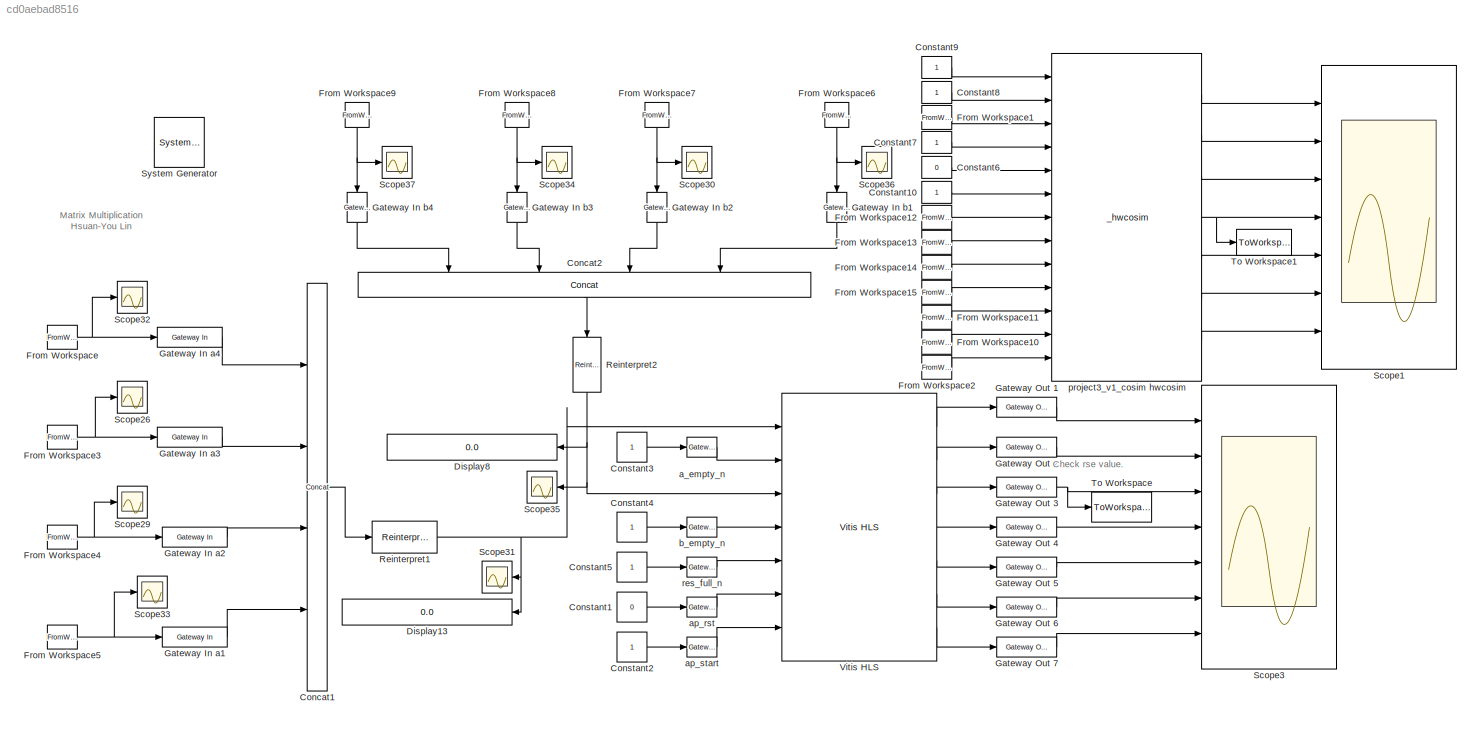
MODEL slx_cd0aebad8516
KIND model
CONFIG AbsTol = auto
CONFIG EnableMultiTasking = off
CONFIG FixedStep = auto
CONFIG MaxStep = auto
CONFIG MinStep = auto
CONFIG RelTol = 1e-3
CONFIG SampleTimeConstraint = Unconstrained
CONFIG SolverName = VariableStepAuto
CONFIG StartTime = 0.0
CONFIG StopTime = 30
BLOCK [Reference]  System Generator  REF=xbsIndex_r4/ System Generator
  AttributesFormatString = System\nGenerator
  Ports = []
  SourceBlock = xbsIndex_r4/ System Generator
  SourceType = Xilinx System Generator Block
  Tag = genX
  UserDataPersistent = on
BLOCK [Reference] Concat1  REF=hdlBasic/Concat
  Ports = [4, 1]
  SourceBlock = hdlBasic/Concat
  SourceType = Bus Concatenator Block
BLOCK [Reference] Concat2  REF=hdlBasic/Concat
  NameLocation = left
  Ports = [4, 1]
  SourceBlock = hdlBasic/Concat
  SourceType = Bus Concatenator Block
BLOCK [Constant] Constant1
  Value = 0
BLOCK [Constant] Constant10
BLOCK [Constant] Constant2
BLOCK [Constant] Constant3
BLOCK [Constant] Constant4
BLOCK [Constant] Constant5
BLOCK [Constant] Constant6
  Value = 0
BLOCK [Constant] Constant7
BLOCK [Constant] Constant8
BLOCK [Constant] Constant9
BLOCK [Display] Display13
  Decimation = 1
  Format = hex (Stored Integer)
  NameLocation = top
  Ports = [1]
BLOCK [Display] Display8
  Decimation = 1
  Format = hex (Stored Integer)
  NameLocation = top
  Ports = [1]
BLOCK [FromWorkspace] From Workspace
  VariableName = a4
BLOCK [FromWorkspace] From Workspace1
  VariableName = a4
BLOCK [FromWorkspace] From Workspace10
  VariableName = a2
BLOCK [FromWorkspace] From Workspace11
  VariableName = a1
BLOCK [FromWorkspace] From Workspace12
  VariableName = b1
BLOCK [FromWorkspace] From Workspace13
  VariableName = b2
BLOCK [FromWorkspace] From Workspace14
  VariableName = b3
BLOCK [FromWorkspace] From Workspace15
  VariableName = b4
BLOCK [FromWorkspace] From Workspace2
  VariableName = a3
BLOCK [FromWorkspace] From Workspace3
  VariableName = a3
BLOCK [FromWorkspace] From Workspace4
  VariableName = a2
BLOCK [FromWorkspace] From Workspace5
  VariableName = a1
BLOCK [FromWorkspace] From Workspace6
  NameLocation = left
  VariableName = b1
BLOCK [FromWorkspace] From Workspace7
  NameLocation = left
  VariableName = b2
BLOCK [FromWorkspace] From Workspace8
  NameLocation = left
  VariableName = b3
BLOCK [FromWorkspace] From Workspace9
  NameLocation = left
  VariableName = b4
BLOCK [Reference] Gateway In a1  REF=hdlBasic/Gateway In
  Ports = [1, 1]
  SourceBlock = hdlBasic/Gateway In
  SourceType = Gateway In Block
BLOCK [Reference] Gateway In a2  REF=hdlBasic/Gateway In
  Ports = [1, 1]
  SourceBlock = hdlBasic/Gateway In
  SourceType = Gateway In Block
BLOCK [Reference] Gateway In a3  REF=hdlBasic/Gateway In
  Ports = [1, 1]
  SourceBlock = hdlBasic/Gateway In
  SourceType = Gateway In Block
BLOCK [Reference] Gateway In a4  REF=hdlBasic/Gateway In
  Ports = [1, 1]
  SourceBlock = hdlBasic/Gateway In
  SourceType = Gateway In Block
BLOCK [Reference] Gateway In b1  REF=hdlBasic/Gateway In
  NameLocation = left
  Ports = [1, 1]
  SourceBlock = hdlBasic/Gateway In
  SourceType = Gateway In Block
BLOCK [Reference] Gateway In b2  REF=hdlBasic/Gateway In
  NameLocation = left
  Ports = [1, 1]
  SourceBlock = hdlBasic/Gateway In
  SourceType = Gateway In Block
BLOCK [Reference] Gateway In b3  REF=hdlBasic/Gateway In
  NameLocation = left
  Ports = [1, 1]
  SourceBlock = hdlBasic/Gateway In
  SourceType = Gateway In Block
BLOCK [Reference] Gateway In b4  REF=hdlBasic/Gateway In
  NameLocation = left
  Ports = [1, 1]
  SourceBlock = hdlBasic/Gateway In
  SourceType = Gateway In Block
BLOCK [Reference] Gateway Out 1  REF=hdlBasic/Gateway Out
  Ports = [1, 1]
  SourceBlock = hdlBasic/Gateway Out
  SourceType = Gateway Out Block
BLOCK [Reference] Gateway Out 2  REF=hdlBasic/Gateway Out
  Ports = [1, 1]
  SourceBlock = hdlBasic/Gateway Out
  SourceType = Gateway Out Block
BLOCK [Reference] Gateway Out 3  REF=hdlBasic/Gateway Out
  Ports = [1, 1]
  SourceBlock = hdlBasic/Gateway Out
  SourceType = Gateway Out Block
BLOCK [Reference] Gateway Out 4  REF=hdlBasic/Gateway Out
  Ports = [1, 1]
  SourceBlock = hdlBasic/Gateway Out
  SourceType = Gateway Out Block
BLOCK [Reference] Gateway Out 5  REF=hdlBasic/Gateway Out
  Ports = [1, 1]
  SourceBlock = hdlBasic/Gateway Out
  SourceType = Gateway Out Block
BLOCK [Reference] Gateway Out 6  REF=hdlBasic/Gateway Out
  Ports = [1, 1]
  SourceBlock = hdlBasic/Gateway Out
  SourceType = Gateway Out Block
BLOCK [Reference] Gateway Out 7  REF=hdlBasic/Gateway Out
  Ports = [1, 1]
  SourceBlock = hdlBasic/Gateway Out
  SourceType = Gateway Out Block
BLOCK [Reference] Reinterpret1  REF=hdlBasic/Reinterpret
  Ports = [1, 1]
  SourceBlock = hdlBasic/Reinterpret
  SourceType = Type Reinterpreter Block
BLOCK [Reference] Reinterpret2  REF=hdlBasic/Reinterpret
  NameLocation = left
  Ports = [1, 1]
  SourceBlock = hdlBasic/Reinterpret
  SourceType = Type Reinterpreter Block
BLOCK [Scope] Scope1
  Floating = off
  NumInputPorts = 7
  Ports = [7]
  ScopeSpecificationString = Simulink.scopes.TimeScopeBlockCfg('CurrentConfiguration', extmgr.ConfigurationSet(extmgr.Configuration('Core','General UI',true),extmgr.Configuration('Core','Source UI',true),extmgr.Configuration('Sources','WiredSimulink',true,'DataLoggingVariableName','ScopeData1','SampleTime','1'),extmgr.Configuration('Visuals','Time Domain',true,'SerializedDisplays',{struct('MinYLimReal','-1548189682728975.0000...<+1636ch>
BLOCK [Scope] Scope26
  Floating = off
  NumInputPorts = 1
  Ports = [1]
  ScopeSpecificationString = Simulink.scopes.TimeScopeBlockCfg('CurrentConfiguration', extmgr.ConfigurationSet(extmgr.Configuration('Core','General UI',true),extmgr.Configuration('Core','Source UI',true),extmgr.Configuration('Sources','WiredSimulink',true,'DataLoggingVariableName','ScopeData1','SampleTime','1'),extmgr.Configuration('Visuals','Time Domain',true,'SerializedDisplays',{struct('MinYLimReal','-2.875','MaxYLimReal',...<+1409ch>
BLOCK [Scope] Scope29
  Floating = off
  NumInputPorts = 1
  Ports = [1]
  ScopeSpecificationString = Simulink.scopes.TimeScopeBlockCfg('CurrentConfiguration', extmgr.ConfigurationSet(extmgr.Configuration('Core','General UI',true),extmgr.Configuration('Core','Source UI',true),extmgr.Configuration('Sources','WiredSimulink',true,'DataLoggingVariableName','ScopeData2','SampleTime','1'),extmgr.Configuration('Visuals','Time Domain',true,'SerializedDisplays',{struct('MinYLimReal','-1.125','MaxYLimReal',...<+1409ch>
BLOCK [Scope] Scope3
  Floating = off
  NumInputPorts = 7
  Ports = [7]
  ScopeSpecificationString = Simulink.scopes.TimeScopeBlockCfg('CurrentConfiguration', extmgr.ConfigurationSet(extmgr.Configuration('Core','General UI',true),extmgr.Configuration('Core','Source UI',true),extmgr.Configuration('Sources','WiredSimulink',true,'DataLoggingVariableName','ScopeData1','SampleTime','1'),extmgr.Configuration('Visuals','Time Domain',true,'SerializedDisplays',{struct('MinYLimReal','-1548189682728975.0000...<+1636ch>
BLOCK [Scope] Scope30
  Floating = off
  NumInputPorts = 1
  Ports = [1]
  ScopeSpecificationString = Simulink.scopes.TimeScopeBlockCfg('CurrentConfiguration', extmgr.ConfigurationSet(extmgr.Configuration('Core','General UI',true),extmgr.Configuration('Core','Source UI',true),extmgr.Configuration('Sources','WiredSimulink',true,'DataLoggingVariableName','ScopeData3','SampleTime','1'),extmgr.Configuration('Visuals','Time Domain',true,'SerializedDisplays',{struct('MinYLimReal','-2.875','MaxYLimReal',...<+1409ch>
BLOCK [Scope] Scope31
  Floating = off
  NameLocation = top
  NumInputPorts = 1
  Ports = [1]
  ScopeSpecificationString = Simulink.scopes.TimeScopeBlockCfg('CurrentConfiguration', extmgr.ConfigurationSet(extmgr.Configuration('Core','General UI',true),extmgr.Configuration('Core','Source UI',true),extmgr.Configuration('Sources','WiredSimulink',true,'DataLoggingVariableName','ScopeData4','SampleTime','1'),extmgr.Configuration('Visuals','Time Domain',true,'SerializedDisplays',{struct('MinYLimReal','-1.625','MaxYLimReal',...<+1409ch>
BLOCK [Scope] Scope32
  Floating = off
  NumInputPorts = 1
  Ports = [1]
  ScopeSpecificationString = Simulink.scopes.TimeScopeBlockCfg('CurrentConfiguration', extmgr.ConfigurationSet(extmgr.Configuration('Core','General UI',true),extmgr.Configuration('Core','Source UI',true),extmgr.Configuration('Sources','WiredSimulink',true,'DataLoggingVariableName','ScopeData5','SampleTime','1'),extmgr.Configuration('Visuals','Time Domain',true,'SerializedDisplays',{struct('MinYLimReal','-1.625','MaxYLimReal',...<+1409ch>
BLOCK [Scope] Scope33
  Floating = off
  NumInputPorts = 1
  Ports = [1]
  ScopeSpecificationString = Simulink.scopes.TimeScopeBlockCfg('CurrentConfiguration', extmgr.ConfigurationSet(extmgr.Configuration('Core','General UI',true),extmgr.Configuration('Core','Source UI',true),extmgr.Configuration('Sources','WiredSimulink',true,'DataLoggingVariableName','ScopeData6','SampleTime','1'),extmgr.Configuration('Visuals','Time Domain',true,'SerializedDisplays',{struct('MinYLimReal','-1.125','MaxYLimReal',...<+1409ch>
BLOCK [Scope] Scope34
  Floating = off
  NumInputPorts = 1
  Ports = [1]
  ScopeSpecificationString = Simulink.scopes.TimeScopeBlockCfg('CurrentConfiguration', extmgr.ConfigurationSet(extmgr.Configuration('Core','General UI',true),extmgr.Configuration('Core','Source UI',true),extmgr.Configuration('Sources','WiredSimulink',true,'DataLoggingVariableName','ScopeData7','SampleTime','1'),extmgr.Configuration('Visuals','Time Domain',true,'SerializedDisplays',{struct('MinYLimReal','-1.125','MaxYLimReal',...<+1409ch>
BLOCK [Scope] Scope35
  Floating = off
  NameLocation = top
  NumInputPorts = 1
  Ports = [1]
  ScopeSpecificationString = Simulink.scopes.TimeScopeBlockCfg('CurrentConfiguration', extmgr.ConfigurationSet(extmgr.Configuration('Core','General UI',true),extmgr.Configuration('Core','Source UI',true),extmgr.Configuration('Sources','WiredSimulink',true,'DataLoggingVariableName','ScopeData8','SampleTime','1'),extmgr.Configuration('Visuals','Time Domain',true,'SerializedDisplays',{struct('MinYLimReal','-1.625','MaxYLimReal',...<+1409ch>
BLOCK [Scope] Scope36
  Floating = off
  NumInputPorts = 1
  Ports = [1]
  ScopeSpecificationString = Simulink.scopes.TimeScopeBlockCfg('CurrentConfiguration', extmgr.ConfigurationSet(extmgr.Configuration('Core','General UI',true),extmgr.Configuration('Core','Source UI',true),extmgr.Configuration('Sources','WiredSimulink',true,'DataLoggingVariableName','ScopeData9','SampleTime','1'),extmgr.Configuration('Visuals','Time Domain',true,'SerializedDisplays',{struct('MinYLimReal','-1.625','MaxYLimReal',...<+1409ch>
BLOCK [Scope] Scope37
  Floating = off
  NumInputPorts = 1
  Ports = [1]
  ScopeSpecificationString = Simulink.scopes.TimeScopeBlockCfg('CurrentConfiguration', extmgr.ConfigurationSet(extmgr.Configuration('Core','General UI',true),extmgr.Configuration('Core','Source UI',true),extmgr.Configuration('Sources','WiredSimulink',true,'DataLoggingVariableName','ScopeData10','SampleTime','1'),extmgr.Configuration('Visuals','Time Domain',true,'SerializedDisplays',{struct('MinYLimReal','-1.125','MaxYLimReal'...<+1410ch>
BLOCK [ToWorkspace] To Workspace
  MaxDataPoints = inf
  Ports = [1]
  SampleTime = -1
  Save2DSignal = 2-D array (concatenate along first dimension)
  SaveFormat = Timeseries
  VariableName = res
BLOCK [ToWorkspace] To Workspace1
  MaxDataPoints = inf
  Ports = [1]
  SampleTime = -1
  Save2DSignal = 2-D array (concatenate along first dimension)
  SaveFormat = Timeseries
  VariableName = res1
BLOCK [Reference] Vitis HLS  REF=hdlBasic/Vitis HLS
  Ports = [7, 7]
  SourceBlock = hdlBasic/Vitis HLS
  SourceType = Xilinx High Level Synthesis Block
BLOCK [Reference] a_empty_n   REF=hdlBasic/Gateway In
  Ports = [1, 1]
  SourceBlock = hdlBasic/Gateway In
  SourceType = Gateway In Block
BLOCK [Reference] ap_rst  REF=hdlBasic/Gateway In
  Ports = [1, 1]
  SourceBlock = hdlBasic/Gateway In
  SourceType = Gateway In Block
BLOCK [Reference] ap_start   REF=hdlBasic/Gateway In
  Ports = [1, 1]
  SourceBlock = hdlBasic/Gateway In
  SourceType = Gateway In Block
BLOCK [Reference] b_empty_n  REF=hdlBasic/Gateway In
  Ports = [1, 1]
  SourceBlock = hdlBasic/Gateway In
  SourceType = Gateway In Block
BLOCK [Reference] project3_v1_cosim hwcosim  REF=JTAGRuntimeCosim_r4/_hwcosim
  Ports = [13, 7]
  SourceBlock = JTAGRuntimeCosim_r4/_hwcosim
  SourceType = JTAG Hardware Co-simulation Block
BLOCK [Reference] res_full_n  REF=hdlBasic/Gateway In
  Ports = [1, 1]
  SourceBlock = hdlBasic/Gateway In
  SourceType = Gateway In Block
ANNOTATION (root): Check rse value.
ANNOTATION (root): Matrix Multiplication Hsuan-You Lin
LINE Concat1:1 -> Reinterpret1:1
LINE Concat2:1 -> Reinterpret2:1
LINE Constant10:1 -> project3_v1_cosim hwcosim:6
LINE Constant1:1 -> ap_rst:1
LINE Constant2:1 -> ap_start :1
LINE Constant3:1 -> a_empty_n :1
LINE Constant4:1 -> b_empty_n:1
LINE Constant5:1 -> res_full_n:1
LINE Constant6:1 -> project3_v1_cosim hwcosim:5
LINE Constant7:1 -> project3_v1_cosim hwcosim:4
LINE Constant8:1 -> project3_v1_cosim hwcosim:2
LINE Constant9:1 -> project3_v1_cosim hwcosim:1
LINE From Workspace10:1 -> project3_v1_cosim hwcosim:12
LINE From Workspace11:1 -> project3_v1_cosim hwcosim:11
LINE From Workspace12:1 -> project3_v1_cosim hwcosim:7
LINE From Workspace13:1 -> project3_v1_cosim hwcosim:8
LINE From Workspace14:1 -> project3_v1_cosim hwcosim:9
LINE From Workspace15:1 -> project3_v1_cosim hwcosim:10
LINE From Workspace1:1 -> project3_v1_cosim hwcosim:3
LINE From Workspace2:1 -> project3_v1_cosim hwcosim:13
NET From Workspace3:1 -> Gateway In a3:1, Scope26:1
NET From Workspace4:1 -> Gateway In a2:1, Scope29:1
NET From Workspace5:1 -> Gateway In a1:1, Scope33:1
NET From Workspace6:1 -> Gateway In b1:1, Scope36:1
NET From Workspace7:1 -> Gateway In b2:1, Scope30:1
NET From Workspace8:1 -> Gateway In b3:1, Scope34:1
NET From Workspace9:1 -> Gateway In b4:1, Scope37:1
NET From Workspace:1 -> Gateway In a4:1, Scope32:1
LINE Gateway In a1:1 -> Concat1:4
LINE Gateway In a2:1 -> Concat1:3
LINE Gateway In a3:1 -> Concat1:2
LINE Gateway In a4:1 -> Concat1:1
LINE Gateway In b1:1 -> Concat2:4
LINE Gateway In b2:1 -> Concat2:3
LINE Gateway In b3:1 -> Concat2:2
LINE Gateway In b4:1 -> Concat2:1
LINE Gateway Out 1:1 -> Scope3:1
LINE Gateway Out 2:1 -> Scope3:2
NET Gateway Out 3:1 -> Scope3:3, To Workspace:1
LINE Gateway Out 4:1 -> Scope3:4
LINE Gateway Out 5:1 -> Scope3:5
LINE Gateway Out 6:1 -> Scope3:6
LINE Gateway Out 7:1 -> Scope3:7
NET Reinterpret1:1 -> Display13:1, Scope31:1, Vitis HLS:1
NET Reinterpret2:1 -> Display8:1, Scope35:1, Vitis HLS:3
LINE Vitis HLS:1 -> Gateway Out 1:1
LINE Vitis HLS:2 -> Gateway Out 2:1
LINE Vitis HLS:3 -> Gateway Out 3:1
LINE Vitis HLS:4 -> Gateway Out 4:1
LINE Vitis HLS:5 -> Gateway Out 5:1
LINE Vitis HLS:6 -> Gateway Out 6:1
LINE Vitis HLS:7 -> Gateway Out 7:1
LINE a_empty_n :1 -> Vitis HLS:2
LINE ap_rst:1 -> Vitis HLS:6
LINE ap_start :1 -> Vitis HLS:7
LINE b_empty_n:1 -> Vitis HLS:4
LINE project3_v1_cosim hwcosim:1 -> Scope1:1
LINE project3_v1_cosim hwcosim:2 -> Scope1:2
LINE project3_v1_cosim hwcosim:3 -> Scope1:3
NET project3_v1_cosim hwcosim:4 -> Scope1:4, To Workspace1:1
LINE project3_v1_cosim hwcosim:5 -> Scope1:5
LINE project3_v1_cosim hwcosim:6 -> Scope1:6
LINE project3_v1_cosim hwcosim:7 -> Scope1:7
LINE res_full_n:1 -> Vitis HLS:5
note: NET lines group one-source signal fan-out (src -> all destinations, sorted); 1:1 wires keep LINE
